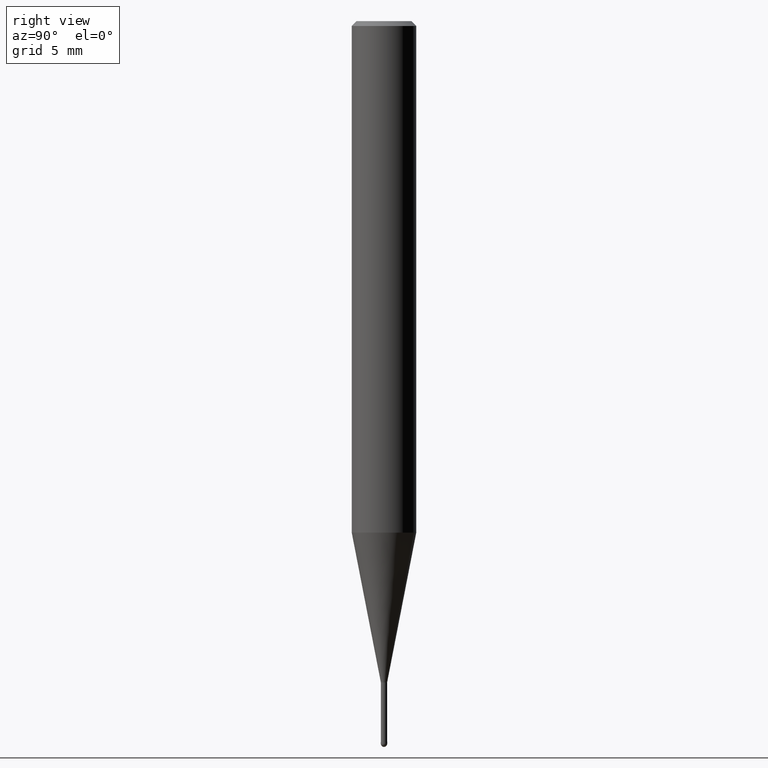
[diagram: clean part render]
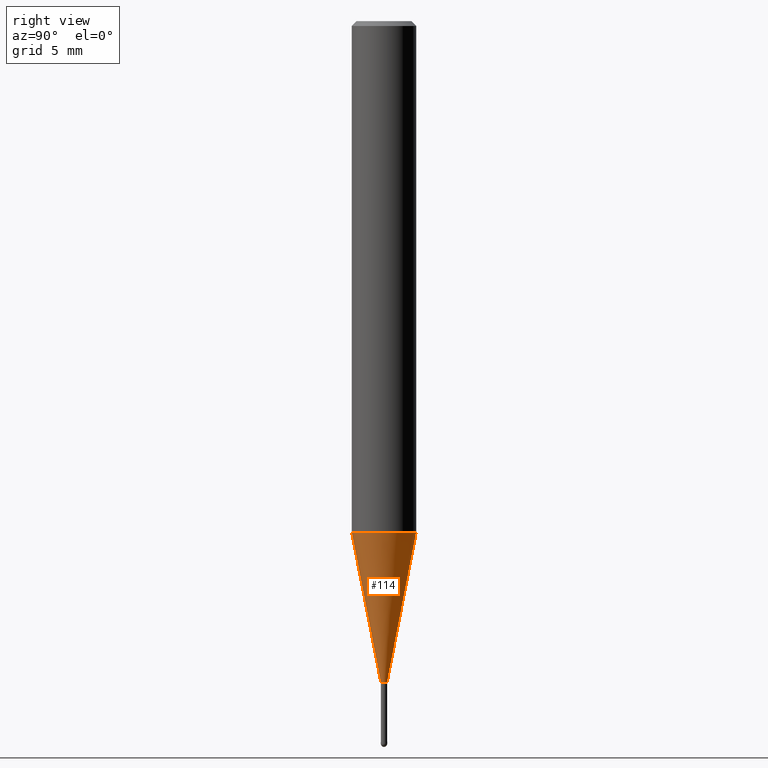
[diagram: same view with one face highlighted and labeled with its STEP entity id]
A machine part, right view. The second image highlights one B-rep face of the part: STEP entity #114.
In plain terms, the highlighted conical surface has half-angle 11 deg.
Its self-contained STEP definition (entity closure, byte-faithful):
#114=ADVANCED_FACE('',(#257),#258,.T.);
#118=VERTEX_POINT('',#262);
#134=VERTEX_POINT('',#280);
#136=EDGE_CURVE('',#170,#118,#282,.T.);
#140=EDGE_CURVE('',#150,#170,#286,.T.);
#150=VERTEX_POINT('',#297);
#170=VERTEX_POINT('',#321);
#174=EDGE_CURVE('',#150,#134,#325,.T.);
#178=EDGE_CURVE('',#118,#134,#329,.T.);
#257=FACE_OUTER_BOUND('',#416,.T.);
#258=CONICAL_SURFACE('',#417,1.09745,0.191984604054908);
#262=CARTESIAN_POINT('',(2.38737008677672E-017,-0.19495,-41.0));
#280=CARTESIAN_POINT('',(2.44915147732706E-016,-1.99995,-31.714));
#282=CIRCLE('',#448,0.19495);
#286=LINE('',#455,#456);
#297=CARTESIAN_POINT('',(0.0,1.99995,-31.714));
#321=CARTESIAN_POINT('',(0.0,0.19495,-41.0));
#325=CIRCLE('',#498,1.99995);
#329=LINE('',#503,#504);
#416=EDGE_LOOP('',(#593,#594,#595,#596));
#417=AXIS2_PLACEMENT_3D('',#597,#598,#599);
#448=AXIS2_PLACEMENT_3D('',#624,#625,#626);
#455=CARTESIAN_POINT('',(-1.34394424300237E-016,1.09745,-36.357));
#456=VECTOR('',#628,1.0);
#498=AXIS2_PLACEMENT_3D('',#667,#668,#669);
#503=CARTESIAN_POINT('',(1.34394424300237E-016,-1.09745,-36.357));
#504=VECTOR('',#670,1.0);
#593=ORIENTED_EDGE('',*,*,#140,.F.);
#594=ORIENTED_EDGE('',*,*,#174,.T.);
#595=ORIENTED_EDGE('',*,*,#178,.F.);
#596=ORIENTED_EDGE('',*,*,#136,.F.);
#597=CARTESIAN_POINT('',(0.0,0.0,-36.357));
#598=DIRECTION('',(-0.0,-0.0,1.0));
#599=DIRECTION('',(0.0,1.0,0.0));
#624=CARTESIAN_POINT('',(0.0,0.0,-41.0));
#625=DIRECTION('',(0.0,0.0,-1.0));
#626=DIRECTION('',(0.0,1.0,0.0));
#628=DIRECTION('',(2.33663968307108E-017,-0.190807411359389,-0.981627491348082));
#667=CARTESIAN_POINT('',(0.0,0.0,-31.714));
#668=DIRECTION('',(0.0,0.0,-1.0));
#669=DIRECTION('',(0.0,1.0,0.0));
#670=DIRECTION('',(2.33663968307108E-017,-0.190807411359389,0.981627491348082));